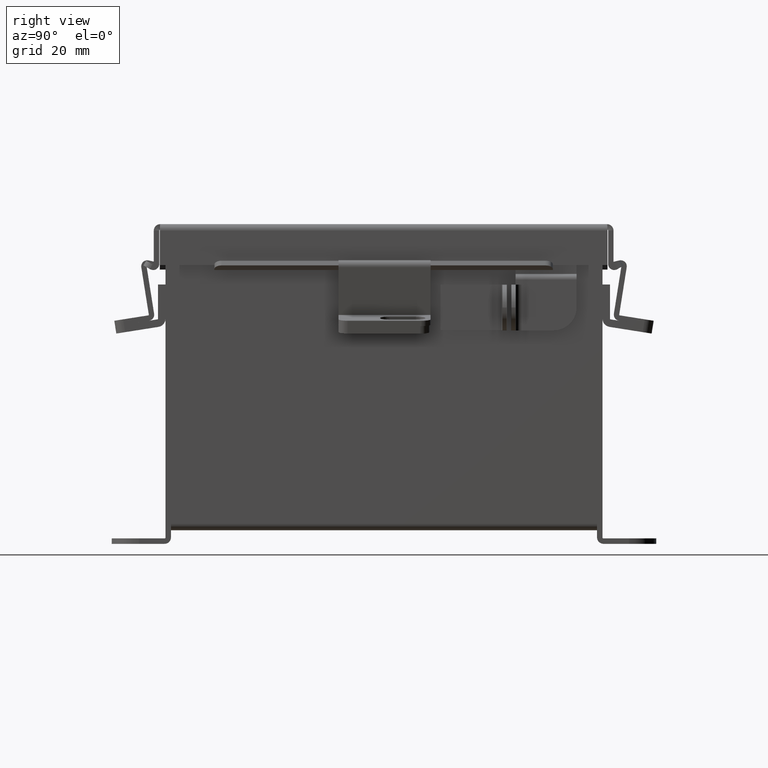
[diagram: clean part render]
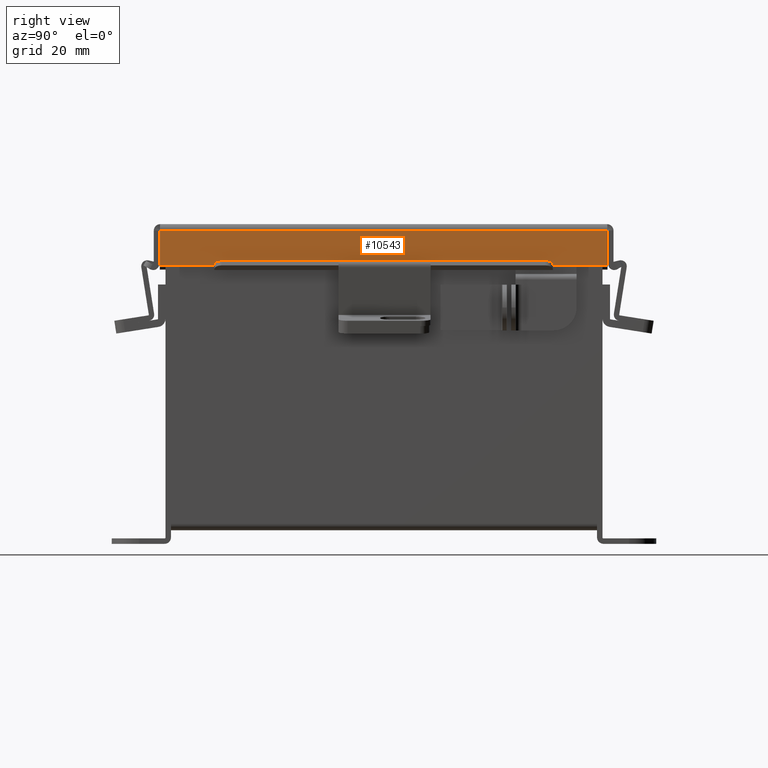
[diagram: same view with one face highlighted and labeled with its STEP entity id]
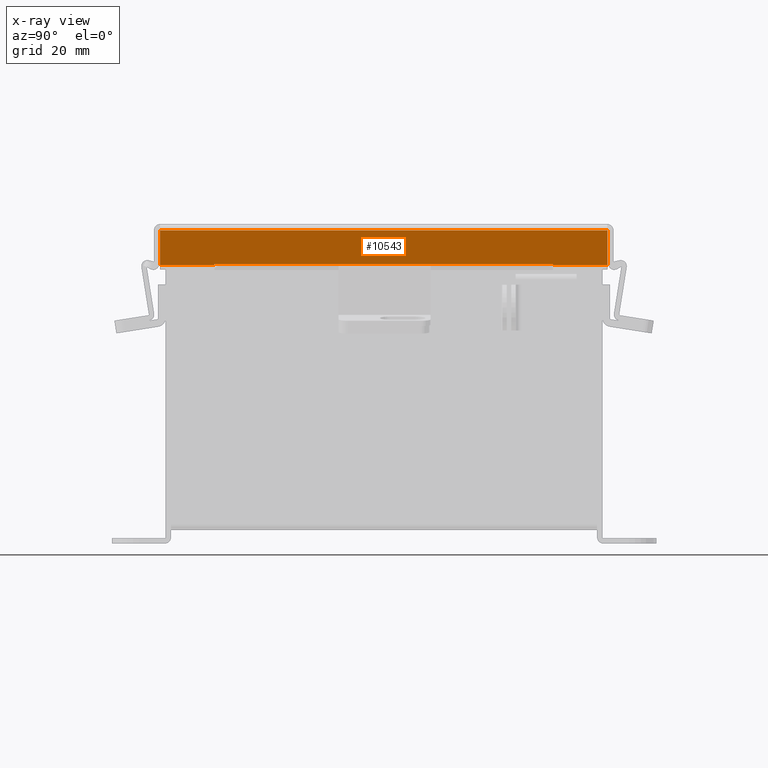
[diagram: x-ray of the same camera — body ghosted, the highlighted face saturated]
A machine part, right view. The second image highlights one B-rep face of the part: STEP entity #10543.
The next image is the same camera in x-ray: the body ghosted, the highlighted face saturated — about 0% of this face is hidden behind the body in this view.
In plain terms, the highlighted planar face has unit normal (-1, 0, -0).
Its self-contained STEP definition (entity closure, byte-faithful):
#264 = EDGE_CURVE ( 'NONE', #1346, #10898, #2825, .T. ) ;
#364 = DIRECTION ( 'NONE',  ( 3.363654414526079700E-015, 1.972152263052529500E-031, -1.000000000000000000 ) ) ;
#515 = VERTEX_POINT ( 'NONE', #6157 ) ;
#554 = VECTOR ( 'NONE', #4936, 39.37007874015748100 ) ;
#852 = VERTEX_POINT ( 'NONE', #3422 ) ;
#883 = VERTEX_POINT ( 'NONE', #1260 ) ;
#1259 = LINE ( 'NONE', #12505, #7087 ) ;
#1260 = CARTESIAN_POINT ( 'NONE',  ( -2.156250000000002200, 2.324478932188135600, 0.4717115427318838200 ) ) ;
#1301 = LINE ( 'NONE', #13677, #4226 ) ;
#1346 = VERTEX_POINT ( 'NONE', #10163 ) ;
#1733 = VECTOR ( 'NONE', #2635, 39.37007874015748100 ) ;
#1914 = LINE ( 'NONE', #11650, #12543 ) ;
#2635 = DIRECTION ( 'NONE',  ( -3.363654414526079700E-015, -1.972152263052529500E-031, 1.000000000000000000 ) ) ;
#2649 = DIRECTION ( 'NONE',  ( -3.363654414526079700E-015, -1.972152263052529500E-031, 1.000000000000000000 ) ) ;
#2825 = LINE ( 'NONE', #11274, #5390 ) ;
#3333 = CARTESIAN_POINT ( 'NONE',  ( -2.156250000000000900, 3.074478932188135200, 0.01299999999999956100 ) ) ;
#3422 = CARTESIAN_POINT ( 'NONE',  ( -2.156250000000002200, 2.324478932188135600, 0.4873000000000038400 ) ) ;
#3636 = EDGE_CURVE ( 'NONE', #852, #515, #9798, .T. ) ;
#3639 = DIRECTION ( 'NONE',  ( 0.0000000000000000000, 0.0000000000000000000, 1.000000000000000000 ) ) ;
#4157 = AXIS2_PLACEMENT_3D ( 'NONE', #13450, #6939, #364 ) ;
#4226 = VECTOR ( 'NONE', #6084, 39.37007874015748100 ) ;
#4302 = ORIENTED_EDGE ( 'NONE', *, *, #264, .F. ) ;
#4306 = VECTOR ( 'NONE', #13107, 39.37007874015748100 ) ;
#4359 = CARTESIAN_POINT ( 'NONE',  ( -2.156250000000002200, 0.0000000000000000000, 0.4873000000000000100 ) ) ;
#4407 = ORIENTED_EDGE ( 'NONE', *, *, #5875, .T. ) ;
#4649 = LINE ( 'NONE', #13547, #1733 ) ;
#4936 = DIRECTION ( 'NONE',  ( 2.258600338820354400E-033, 1.000000000000000000, 0.0000000000000000000 ) ) ;
#5156 = LINE ( 'NONE', #5671, #13550 ) ;
#5390 = VECTOR ( 'NONE', #3639, 39.37007874015748100 ) ;
#5671 = CARTESIAN_POINT ( 'NONE',  ( -2.156250000000002200, 2.324478932188135600, 0.4717115427318838200 ) ) ;
#5875 = EDGE_CURVE ( 'NONE', #9260, #6649, #4649, .T. ) ;
#6084 = DIRECTION ( 'NONE',  ( 1.752481305030217200E-014, 1.972152263052529500E-031, -1.000000000000000000 ) ) ;
#6157 = CARTESIAN_POINT ( 'NONE',  ( -2.156250000000002200, 3.074478932188135600, 0.4873000000000000100 ) ) ;
#6529 = ORIENTED_EDGE ( 'NONE', *, *, #8113, .F. ) ;
#6649 = VERTEX_POINT ( 'NONE', #13664 ) ;
#6939 = DIRECTION ( 'NONE',  ( 1.000000000000000000, 8.461504365522398300E-033, 3.363654414526079700E-015 ) ) ;
#7087 = VECTOR ( 'NONE', #2649, 39.37007874015748100 ) ;
#7320 = ORIENTED_EDGE ( 'NONE', *, *, #14098, .F. ) ;
#7986 = PLANE ( 'NONE',  #4157 ) ;
#8113 = EDGE_CURVE ( 'NONE', #852, #883, #1301, .T. ) ;
#8278 = FACE_OUTER_BOUND ( 'NONE', #11771, .T. ) ;
#9260 = VERTEX_POINT ( 'NONE', #13286 ) ;
#9325 = EDGE_CURVE ( 'NONE', #883, #1346, #5156, .T. ) ;
#9340 = LINE ( 'NONE', #11505, #554 ) ;
#9537 = ORIENTED_EDGE ( 'NONE', *, *, #3636, .T. ) ;
#9606 = EDGE_CURVE ( 'NONE', #9260, #11618, #1914, .T. ) ;
#9798 = LINE ( 'NONE', #4359, #4306 ) ;
#10079 = DIRECTION ( 'NONE',  ( -2.258600338820354400E-033, -1.000000000000000000, -0.0000000000000000000 ) ) ;
#10163 = CARTESIAN_POINT ( 'NONE',  ( -2.156250000000002200, -2.324478932188135200, 0.4717115427318794300 ) ) ;
#10404 = ORIENTED_EDGE ( 'NONE', *, *, #9325, .F. ) ;
#10543 = ADVANCED_FACE ( 'NONE', ( #8278 ), #7986, .F. ) ;
#10749 = CARTESIAN_POINT ( 'NONE',  ( -2.156250000000002200, -2.324478932188135200, 0.4872999999999994600 ) ) ;
#10898 = VERTEX_POINT ( 'NONE', #10749 ) ;
#11274 = CARTESIAN_POINT ( 'NONE',  ( -2.156250000000002200, -2.324478932188135200, 0.4717115427318794300 ) ) ;
#11505 = CARTESIAN_POINT ( 'NONE',  ( -2.156250000000002200, 0.0000000000000000000, 0.4873000000000000100 ) ) ;
#11618 = VERTEX_POINT ( 'NONE', #3333 ) ;
#11650 = CARTESIAN_POINT ( 'NONE',  ( -2.156250000000000900, 3.156249999999998700, 0.01299999999999956100 ) ) ;
#11771 = EDGE_LOOP ( 'NONE', ( #6529, #9537, #7320, #12801, #4407, #12208, #4302, #10404 ) ) ;
#12208 = ORIENTED_EDGE ( 'NONE', *, *, #14143, .T. ) ;
#12505 = CARTESIAN_POINT ( 'NONE',  ( -2.156250000000000900, 3.074478932188135600, 0.0000000000000000000 ) ) ;
#12543 = VECTOR ( 'NONE', #12750, 39.37007874015748100 ) ;
#12750 = DIRECTION ( 'NONE',  ( 2.258600338820354400E-033, 1.000000000000000000, -0.0000000000000000000 ) ) ;
#12801 = ORIENTED_EDGE ( 'NONE', *, *, #9606, .F. ) ;
#13107 = DIRECTION ( 'NONE',  ( 2.258600338820354400E-033, 1.000000000000000000, 0.0000000000000000000 ) ) ;
#13286 = CARTESIAN_POINT ( 'NONE',  ( -2.156250000000000900, -3.074478932188135200, 0.01299999999999956100 ) ) ;
#13450 = CARTESIAN_POINT ( 'NONE',  ( -2.156250000000000900, 0.0000000000000000000, -7.649174382259936200E-015 ) ) ;
#13547 = CARTESIAN_POINT ( 'NONE',  ( -2.156250000000000900, -3.074478932188135200, -7.649174382259936200E-015 ) ) ;
#13550 = VECTOR ( 'NONE', #10079, 39.37007874015748100 ) ;
#13664 = CARTESIAN_POINT ( 'NONE',  ( -2.156250000000002200, -3.074478932188135200, 0.4872999999999994600 ) ) ;
#13677 = CARTESIAN_POINT ( 'NONE',  ( -2.156250000000002700, 2.324478932188135600, 0.4873000000000038400 ) ) ;
#14098 = EDGE_CURVE ( 'NONE', #11618, #515, #1259, .T. ) ;
#14143 = EDGE_CURVE ( 'NONE', #6649, #10898, #9340, .T. ) ;